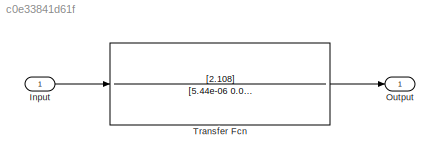
MODEL slx_c0e33841d61f
KIND model
CONFIG AbsTol = auto
CONFIG EnableMultiTasking = off
CONFIG FixedStep = auto
CONFIG MaxStep = auto
CONFIG MinStep = auto
CONFIG RelTol = 1e-3
CONFIG SampleTimeConstraint = Unconstrained
CONFIG SolverName = VariableStepAuto
CONFIG StartTime = 0.0
CONFIG StopTime = 30
BLOCK [Inport] Input
BLOCK [Outport] Output
BLOCK [TransferFcn] Transfer Fcn
  Denominator = [5.44e-06 0.001993 0.05968]
  Numerator = [2.108]
LINE Input:1 -> Transfer Fcn:1
LINE Transfer Fcn:1 -> Output:1
